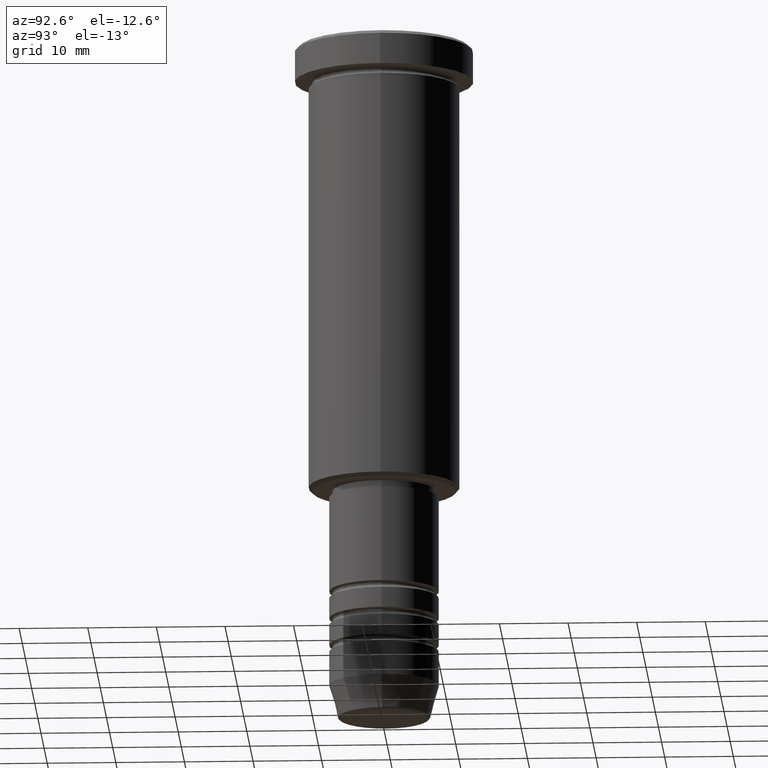
[diagram: clean part render]
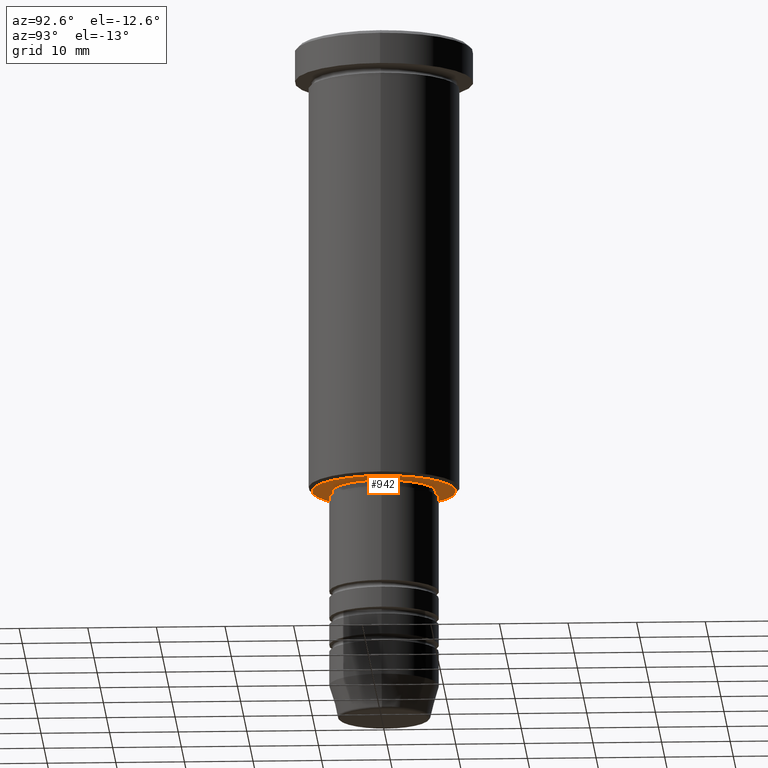
[diagram: same view with one face highlighted and labeled with its STEP entity id]
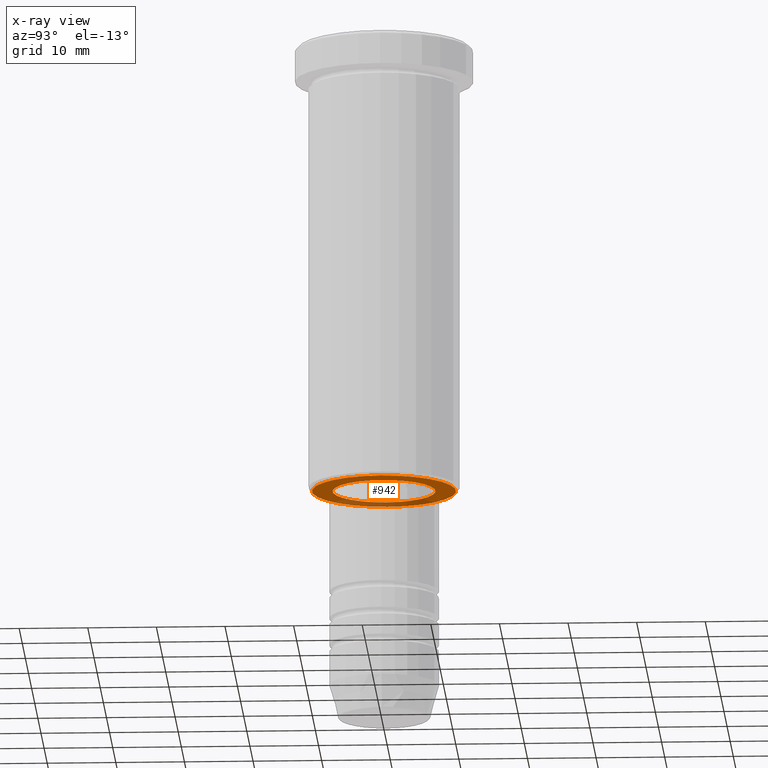
[diagram: x-ray of the same camera — body ghosted, the highlighted face saturated]
A machine part, auxiliary view. The second image highlights one B-rep face of the part: STEP entity #942.
The next image is the same camera in x-ray: the body ghosted, the highlighted face saturated — about 25% of this face is hidden behind the body in this view.
In plain terms, the highlighted planar face has unit normal (0, 0, -1).
Its self-contained STEP definition (entity closure, byte-faithful):
#2 = PLANE ( 'NONE',  #1109 ) ;
#19 = EDGE_CURVE ( 'NONE', #567, #679, #596, .T. ) ;
#87 = ORIENTED_EDGE ( 'NONE', *, *, #862, .T. ) ;
#99 = CARTESIAN_POINT ( 'NONE',  ( 0.000000000000000000, 0.000000000000000000, -66.00000000000000000 ) ) ;
#141 = EDGE_LOOP ( 'NONE', ( #655, #87 ) ) ;
#173 = DIRECTION ( 'NONE',  ( 0.000000000000000000, 0.000000000000000000, -1.000000000000000000 ) ) ;
#178 = ORIENTED_EDGE ( 'NONE', *, *, #578, .T. ) ;
#183 = EDGE_LOOP ( 'NONE', ( #178, #602 ) ) ;
#189 = DIRECTION ( 'NONE',  ( -1.000000000000000000, 0.000000000000000000, -0.000000000000000000 ) ) ;
#265 = FACE_OUTER_BOUND ( 'NONE', #183, .T. ) ;
#334 = EDGE_CURVE ( 'NONE', #1112, #715, #1182, .T. ) ;
#360 = CIRCLE ( 'NONE', #763, 7.500000000000000000 ) ;
#381 = DIRECTION ( 'NONE',  ( 1.000000000000000000, 0.000000000000000000, 0.000000000000000000 ) ) ;
#400 = AXIS2_PLACEMENT_3D ( 'NONE', #829, #684, #960 ) ;
#444 = DIRECTION ( 'NONE',  ( -0.000000000000000000, -0.000000000000000000, 1.000000000000000000 ) ) ;
#464 = DIRECTION ( 'NONE',  ( 0.000000000000000000, 0.000000000000000000, -1.000000000000000000 ) ) ;
#471 = CARTESIAN_POINT ( 'NONE',  ( 7.500000000000000000, 0.000000000000000000, -66.00000000000000000 ) ) ;
#480 = DIRECTION ( 'NONE',  ( -0.000000000000000000, -0.000000000000000000, 1.000000000000000000 ) ) ;
#501 = CARTESIAN_POINT ( 'NONE',  ( 0.000000000000000000, 0.000000000000000000, -66.00000000000000000 ) ) ;
#538 = CARTESIAN_POINT ( 'NONE',  ( 0.000000000000000000, 11.00000000000000000, -66.00000000000000000 ) ) ;
#567 = VERTEX_POINT ( 'NONE', #471 ) ;
#578 = EDGE_CURVE ( 'NONE', #715, #1112, #919, .T. ) ;
#596 = CIRCLE ( 'NONE', #1024, 7.500000000000000000 ) ;
#602 = ORIENTED_EDGE ( 'NONE', *, *, #334, .T. ) ;
#625 = CARTESIAN_POINT ( 'NONE',  ( 0.000000000000000000, 0.000000000000000000, -66.00000000000000000 ) ) ;
#655 = ORIENTED_EDGE ( 'NONE', *, *, #19, .T. ) ;
#658 = FACE_BOUND ( 'NONE', #141, .T. ) ;
#679 = VERTEX_POINT ( 'NONE', #1140 ) ;
#684 = DIRECTION ( 'NONE',  ( 0.000000000000000000, 0.000000000000000000, -1.000000000000000000 ) ) ;
#715 = VERTEX_POINT ( 'NONE', #881 ) ;
#763 = AXIS2_PLACEMENT_3D ( 'NONE', #625, #444, #894 ) ;
#798 = AXIS2_PLACEMENT_3D ( 'NONE', #99, #464, #832 ) ;
#829 = CARTESIAN_POINT ( 'NONE',  ( 0.000000000000000000, 0.000000000000000000, -66.00000000000000000 ) ) ;
#832 = DIRECTION ( 'NONE',  ( -1.000000000000000000, 0.000000000000000000, 0.000000000000000000 ) ) ;
#862 = EDGE_CURVE ( 'NONE', #679, #567, #360, .T. ) ;
#881 = CARTESIAN_POINT ( 'NONE',  ( 10.50000000000003730, 0.000000000000000000, -66.00000000000000000 ) ) ;
#894 = DIRECTION ( 'NONE',  ( 1.000000000000000000, 0.000000000000000000, 0.000000000000000000 ) ) ;
#919 = CIRCLE ( 'NONE', #400, 10.50000000000003730 ) ;
#942 = ADVANCED_FACE ( 'NONE', ( #265, #658 ), #2, .T. ) ;
#945 = CARTESIAN_POINT ( 'NONE',  ( -10.50000000000003730, 1.316495309083406787E-15, -66.00000000000000000 ) ) ;
#960 = DIRECTION ( 'NONE',  ( -1.000000000000000000, 0.000000000000000000, 0.000000000000000000 ) ) ;
#1024 = AXIS2_PLACEMENT_3D ( 'NONE', #501, #480, #381 ) ;
#1109 = AXIS2_PLACEMENT_3D ( 'NONE', #538, #173, #189 ) ;
#1112 = VERTEX_POINT ( 'NONE', #945 ) ;
#1140 = CARTESIAN_POINT ( 'NONE',  ( -7.500000000000000000, 9.184850993605147944E-16, -66.00000000000000000 ) ) ;
#1182 = CIRCLE ( 'NONE', #798, 10.50000000000003730 ) ;